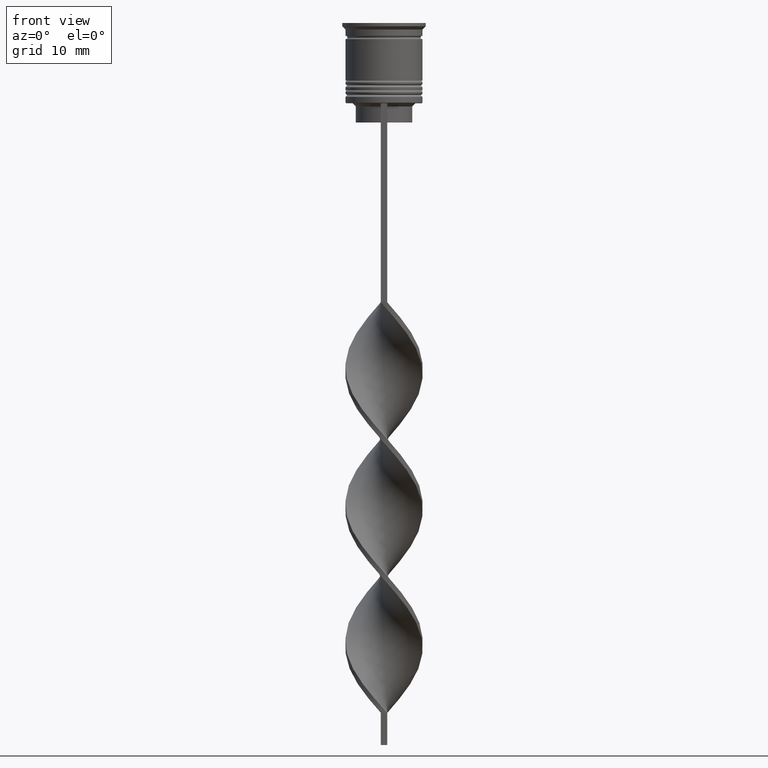
[diagram: clean part render]
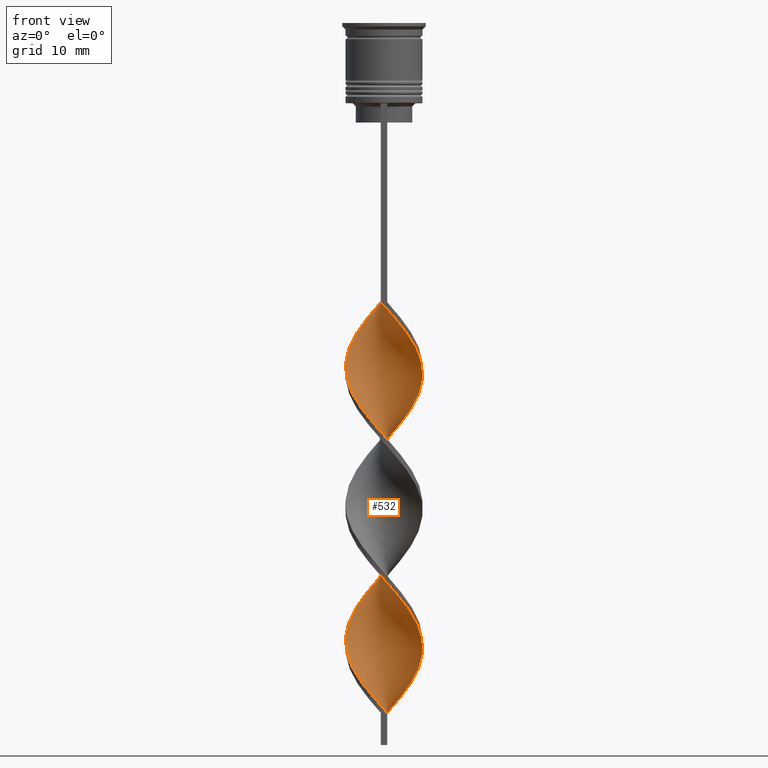
[diagram: same view with one face highlighted and labeled with its STEP entity id]
A machine part, front view. The second image highlights one B-rep face of the part: STEP entity #532.
In plain terms, the highlighted face is a freeform B-spline surface patch.
Its self-contained STEP definition (entity closure, byte-faithful):
#1 = CARTESIAN_POINT ( 'NONE',  ( 3.018907784180934861, -5.260288998093235691, -47.60256410256408799 ) ) ;
#9 = CARTESIAN_POINT ( 'NONE',  ( -4.653870821996361151, -3.819880413333762714, -58.26923076923076650 ) ) ;
#26 = CARTESIAN_POINT ( 'NONE',  ( -3.847936200635249993, 4.688051999358553878, -90.26923076923075939 ) ) ;
#33 = CARTESIAN_POINT ( 'NONE',  ( 4.858046446425394294, 3.630954320453863016, -59.08974358974358410 ) ) ;
#39 = CARTESIAN_POINT ( 'NONE',  ( -1.228531899333562993, 5.939289008388869640, -44.32051282051282470 ) ) ;
#50 = CARTESIAN_POINT ( 'NONE',  ( -0.9504230770123187622, 5.945308736700090968, -66.47435897435896379 ) ) ;
#55 = CARTESIAN_POINT ( 'NONE',  ( 5.585824691029640299, 2.362838774426348376, -57.44871794871794890 ) ) ;
#71 = CARTESIAN_POINT ( 'NONE',  ( 4.653870821996360263, -3.819880413333763158, -50.06410256410256210 ) ) ;
#77 = CARTESIAN_POINT ( 'NONE',  ( -1.228531899333566990, -5.939289008388869640, -85.34615384615383959 ) ) ;
#78 = CARTESIAN_POINT ( 'NONE',  ( -1.672314254691080082, -5.829906481789052464, -62.37179487179486870 ) ) ;
#89 = CARTESIAN_POINT ( 'NONE',  ( 1.921364894438374549, 5.705993072412533174, -105.8589743589743506 ) ) ;
#95 = CARTESIAN_POINT ( 'NONE',  ( 6.044068061194097119, -0.5036723384328415376, -54.16666666666665719 ) ) ;
#111 = CARTESIAN_POINT ( 'NONE',  ( 5.895984904460662257, -1.219574518580966105, -96.01282051282051100 ) ) ;
#126 = CARTESIAN_POINT ( 'NONE',  ( 3.604480575359220396, -4.822625818147004750, -91.08974358974359120 ) ) ;
#131 = CARTESIAN_POINT ( 'NONE',  ( -4.190053366537505042, 4.384962638200773810, -70.57692307692306599 ) ) ;
#145 = CARTESIAN_POINT ( 'NONE',  ( -5.432795012591220107, 2.595137443597922644, -73.03846153846153300 ) ) ;
#152 = CARTESIAN_POINT ( 'NONE',  ( -2.614197889543182107, 5.472697136436197596, -45.96153846153845279 ) ) ;
#154 = CARTESIAN_POINT ( 'NONE',  ( 0.9504230770123263117, 5.945308736700090968, -84.52564102564103621 ) ) ;
#165 = CARTESIAN_POINT ( 'NONE',  ( -6.044068061194097119, 0.5036723384328423148, -75.50000000000000000 ) ) ;
#187 = CARTESIAN_POINT ( 'NONE',  ( 2.345611019436010469, 5.545097739941142301, -82.88461538461537259 ) ) ;
#205 = CARTESIAN_POINT ( 'NONE',  ( 4.858046446425391629, -3.630954320453867012, -70.57692307692306599 ) ) ;
#218 = CARTESIAN_POINT ( 'NONE',  ( 0.5000000000000005551, 6.000000000000000000, -107.5000000000000000 ) ) ;
#231 = CARTESIAN_POINT ( 'NONE',  ( -3.018907784180935749, -5.260288998093234802, -60.73076923076922640 ) ) ;
#241 = VERTEX_POINT ( 'NONE', #2439 ) ;
#250 = CARTESIAN_POINT ( 'NONE',  ( -2.345611019436007361, -5.545097739941143189, -61.55128205128204399 ) ) ;
#269 = CARTESIAN_POINT ( 'NONE',  ( -5.787399899633756561, 1.660121200912507922, -51.70512820512820440 ) ) ;
#285 = CARTESIAN_POINT ( 'NONE',  ( 1.672314254691080748, 5.829906481789052464, -83.70512820512820440 ) ) ;
#301 = CARTESIAN_POINT ( 'NONE',  ( 5.117688277455216372, 3.254798188466750730, -78.78205128205127039 ) ) ;
#326 = CARTESIAN_POINT ( 'NONE',  ( 0.2285318993335633819, -6.060710991611130360, -44.32051282051282470 ) ) ;
#331 = CARTESIAN_POINT ( 'NONE',  ( -5.432795012591220107, 2.595137443597922644, -73.03846153846153300 ) ) ;
#332 = CARTESIAN_POINT ( 'NONE',  ( -6.016521584715985860, 0.2268656444829126040, -53.34615384615383959 ) ) ;
#345 = CARTESIAN_POINT ( 'NONE',  ( 1.672314254691077640, -5.829906481789053352, -45.96153846153845990 ) ) ;
#350 = CARTESIAN_POINT ( 'NONE',  ( 4.653870821996360263, -3.819880413333763158, -92.73076923076922640 ) ) ;
#359 = CARTESIAN_POINT ( 'NONE',  ( -3.018907784180935749, -5.260288998093234802, -103.3974358974358694 ) ) ;
#363 = CARTESIAN_POINT ( 'NONE',  ( 1.672314254691077640, -5.829906481789053352, -88.62820512820512420 ) ) ;
#366 = CARTESIAN_POINT ( 'NONE',  ( -3.604480575359219507, 4.822625818147005639, -69.75641025641024839 ) ) ;
#385 = CARTESIAN_POINT ( 'NONE',  ( 5.221935568727516852, 2.996896547440106140, -100.9358974358974308 ) ) ;
#397 = CARTESIAN_POINT ( 'NONE',  ( -4.858046446425396070, -3.630954320453860351, -80.42307692307691980 ) ) ;
#402 = CARTESIAN_POINT ( 'NONE',  ( -1.672314254691075641, 5.829906481789053352, -67.29487179487178139 ) ) ;
#403 = CARTESIAN_POINT ( 'NONE',  ( 5.988975108237873712, -0.9574036273986642476, -73.85897435897436480 ) ) ;
#415 = CARTESIAN_POINT ( 'NONE',  ( 0.5000000000000005551, 6.000000000000000000, -107.5000000000000000 ) ) ;
#419 = CARTESIAN_POINT ( 'NONE',  ( 3.847936200635250437, 4.688051999358552990, -103.3974358974358694 ) ) ;
#420 = CARTESIAN_POINT ( 'NONE',  ( -5.221935568727515964, 2.996896547440107916, -92.73076923076922640 ) ) ;
#455 = CARTESIAN_POINT ( 'NONE',  ( -5.117688277455213708, -3.254798188466752951, -100.1153846153846132 ) ) ;
#503 = CARTESIAN_POINT ( 'NONE',  ( 1.228531899333561661, -5.939289008388869640, -65.65384615384614619 ) ) ;
#519 = CARTESIAN_POINT ( 'NONE',  ( -5.117688277455213708, -3.254798188466752951, -100.1153846153846274 ) ) ;
#528 = CARTESIAN_POINT ( 'NONE',  ( -2.345611019436006028, 5.545097739941144077, -68.11538461538459899 ) ) ;
#532 = ADVANCED_FACE ( 'NONE', ( #1371 ), #2099, .T. ) ;
#539 = CARTESIAN_POINT ( 'NONE',  ( -5.787399899633756561, 1.660121200912507922, -94.37179487179486159 ) ) ;
#555 = VECTOR ( 'NONE', #2796, 1000.000000000000000 ) ;
#556 = CARTESIAN_POINT ( 'NONE',  ( -4.190053366537507706, -4.384962638200770257, -59.08974358974359120 ) ) ;
#574 = CARTESIAN_POINT ( 'NONE',  ( -2.614197889543182107, 5.472697136436197596, -88.62820512820513841 ) ) ;
#614 = CARTESIAN_POINT ( 'NONE',  ( 6.016521584715985860, 0.2268656444829105501, -54.98717948717948190 ) ) ;
#617 = CARTESIAN_POINT ( 'NONE',  ( 5.432795012591220107, -2.595137443597922200, -94.37179487179486159 ) ) ;
#618 = CARTESIAN_POINT ( 'NONE',  ( -5.432795012591221884, -2.595137443597919980, -56.62820512820513130 ) ) ;
#631 = CARTESIAN_POINT ( 'NONE',  ( 5.787399899633756561, 1.660121200912505479, -99.29487179487178139 ) ) ;
#636 = CARTESIAN_POINT ( 'NONE',  ( -4.858046446425396070, -3.630954320453860351, -80.42307692307691980 ) ) ;
#649 = CARTESIAN_POINT ( 'NONE',  ( -5.117688277455211932, 3.254798188466756503, -72.21794871794871540 ) ) ;
#653 = CARTESIAN_POINT ( 'NONE',  ( 0.5000000000000005551, 6.000000000000000000, -64.83333333333332860 ) ) ;
#666 = CARTESIAN_POINT ( 'NONE',  ( -6.016521584715984972, -0.2268656444829071639, -76.32051282051281760 ) ) ;
#674 = CARTESIAN_POINT ( 'NONE',  ( 2.345611019436006028, -5.545097739941144077, -89.44871794871794179 ) ) ;
#675 = CARTESIAN_POINT ( 'NONE',  ( -3.847936200635249993, 4.688051999358553878, -47.60256410256409509 ) ) ;
#686 = CARTESIAN_POINT ( 'NONE',  ( 4.352991323530322809, 4.159503159906207337, -102.5769230769230660 ) ) ;
#692 = CARTESIAN_POINT ( 'NONE',  ( 4.190053366537506818, -4.384962638200772922, -91.91025641025643722 ) ) ;
#693 = CARTESIAN_POINT ( 'NONE',  ( 4.653870821996362039, 3.819880413333761826, -79.60256410256410220 ) ) ;
#707 = CARTESIAN_POINT ( 'NONE',  ( -3.018907784180933973, 5.260288998093236579, -68.93589743589743080 ) ) ;
#711 = CARTESIAN_POINT ( 'NONE',  ( -0.4999999999999997780, 6.000000000000000000, -43.50000000000000000 ) ) ;
#712 = CARTESIAN_POINT ( 'NONE',  ( -1.228531899333562993, 5.939289008388869640, -86.98717948717948900 ) ) ;
#732 = CARTESIAN_POINT ( 'NONE',  ( -0.4999999999999997780, 6.000000000000000000, -86.16666666666667140 ) ) ;
#748 = CARTESIAN_POINT ( 'NONE',  ( 0.2285318993335668514, 6.060710991611130360, -85.34615384615385381 ) ) ;
#775 = CARTESIAN_POINT ( 'NONE',  ( -4.352991323530321033, 4.159503159906209113, -91.08974358974359120 ) ) ;
#782 = CARTESIAN_POINT ( 'NONE',  ( 6.044068061194097119, -0.5036723384328415376, -54.16666666666666430 ) ) ;
#793 = ORIENTED_EDGE ( 'NONE', *, *, #2493, .F. ) ;
#795 = CARTESIAN_POINT ( 'NONE',  ( 5.747901747727230060, 1.935476698729086786, -77.14102564102563520 ) ) ;
#810 = CARTESIAN_POINT ( 'NONE',  ( 3.604480575359223060, 4.822625818147002086, -81.24358974358973740 ) ) ;
#820 = CARTESIAN_POINT ( 'NONE',  ( 4.190053366537506818, -4.384962638200772922, -49.24358974358973740 ) ) ;
#827 = EDGE_LOOP ( 'NONE', ( #859, #2407, #3457, #793 ) ) ;
#828 = CARTESIAN_POINT ( 'NONE',  ( 2.345611019436010469, 5.545097739941142301, -82.88461538461537259 ) ) ;
#836 = CARTESIAN_POINT ( 'NONE',  ( 0.9504230770123207606, -5.945308736700090968, -45.14102564102563520 ) ) ;
#846 = CARTESIAN_POINT ( 'NONE',  ( 0.4999999999999990563, -6.000000000000000000, -64.83333333333332860 ) ) ;
#859 = ORIENTED_EDGE ( 'NONE', *, *, #1781, .T. ) ;
#861 = VERTEX_POINT ( 'NONE', #1269 ) ;
#883 = CARTESIAN_POINT ( 'NONE',  ( -4.653870821996361151, -3.819880413333762714, -100.9358974358974308 ) ) ;
#887 = CARTESIAN_POINT ( 'NONE',  ( 5.988975108237873712, 0.9574036273986640255, -55.80769230769230660 ) ) ;
#890 = CARTESIAN_POINT ( 'NONE',  ( -0.9504230770123187622, 5.945308736700090968, -66.47435897435896379 ) ) ;
#893 = CARTESIAN_POINT ( 'NONE',  ( -5.895984904460662257, -1.219574518580964106, -54.98717948717948190 ) ) ;
#909 = CARTESIAN_POINT ( 'NONE',  ( 5.895984904460662257, -1.219574518580966105, -96.01282051282051100 ) ) ;
#912 = CARTESIAN_POINT ( 'NONE',  ( 5.988975108237873712, 0.9574036273986641365, -55.80769230769230660 ) ) ;
#913 = CARTESIAN_POINT ( 'NONE',  ( -0.4999999999999997780, 6.000000000000000888, -43.50000000000000000 ) ) ;
#924 = CARTESIAN_POINT ( 'NONE',  ( -5.585824691029640299, -2.362838774426345712, -78.78205128205127039 ) ) ;
#928 = CARTESIAN_POINT ( 'NONE',  ( -0.4999999999999997780, -6.000000000000000000, -86.16666666666667140 ) ) ;
#936 = CARTESIAN_POINT ( 'NONE',  ( -0.2285318993335660742, -6.060710991611129472, -106.6794871794871682 ) ) ;
#946 = CARTESIAN_POINT ( 'NONE',  ( 5.787399899633756561, 1.660121200912505479, -99.29487179487178139 ) ) ;
#960 = CARTESIAN_POINT ( 'NONE',  ( 5.117688277455213708, -3.254798188466753839, -93.55128205128204399 ) ) ;
#967 = CARTESIAN_POINT ( 'NONE',  ( -3.018907784180934417, 5.260288998093236579, -68.93589743589743080 ) ) ;
#979 = CARTESIAN_POINT ( 'NONE',  ( -0.4999999999999997780, -6.000000000000000000, -86.16666666666667140 ) ) ;
#983 = CARTESIAN_POINT ( 'NONE',  ( -3.847936200635249993, 4.688051999358553878, -47.60256410256408799 ) ) ;
#984 = CARTESIAN_POINT ( 'NONE',  ( -4.858046446425393405, 3.630954320453865680, -91.91025641025643722 ) ) ;
#1002 = CARTESIAN_POINT ( 'NONE',  ( -5.432795012591221884, -2.595137443597919980, -99.29487179487178139 ) ) ;
#1021 = CARTESIAN_POINT ( 'NONE',  ( 5.117688277455216372, 3.254798188466750286, -78.78205128205127039 ) ) ;
#1037 = CARTESIAN_POINT ( 'NONE',  ( -3.604480575359222172, -4.822625818147002974, -102.5769230769230660 ) ) ;
#1055 = CARTESIAN_POINT ( 'NONE',  ( -0.4999999999999997780, -6.000000000000000000, -43.50000000000000000 ) ) ;
#1064 = LINE ( 'NONE', #1339, #555 ) ;
#1067 = CARTESIAN_POINT ( 'NONE',  ( -6.044068061194097119, -0.5036723384328408715, -96.83333333333332860 ) ) ;
#1075 = CARTESIAN_POINT ( 'NONE',  ( 5.221935568727516852, 2.996896547440106140, -58.26923076923076650 ) ) ;
#1087 = CARTESIAN_POINT ( 'NONE',  ( 5.988975108237873712, -0.9574036273986643586, -73.85897435897436480 ) ) ;
#1095 = CARTESIAN_POINT ( 'NONE',  ( 0.2285318993335633819, -6.060710991611129472, -44.32051282051282470 ) ) ;
#1103 = CARTESIAN_POINT ( 'NONE',  ( -5.747901747727229171, -1.935476698729088563, -55.80769230769230660 ) ) ;
#1119 = CARTESIAN_POINT ( 'NONE',  ( -0.2285318993335660742, -6.060710991611129472, -64.01282051282051100 ) ) ;
#1138 = CARTESIAN_POINT ( 'NONE',  ( 1.921364894438370330, -5.705993072412534062, -66.47435897435896379 ) ) ;
#1144 = CARTESIAN_POINT ( 'NONE',  ( 5.747901747727229171, -1.935476698729089451, -52.52564102564102910 ) ) ;
#1149 = CARTESIAN_POINT ( 'NONE',  ( -5.221935568727515964, 2.996896547440107916, -50.06410256410256210 ) ) ;
#1156 = CARTESIAN_POINT ( 'NONE',  ( -0.9504230770123229810, -5.945308736700090968, -105.8589743589743506 ) ) ;
#1166 = CARTESIAN_POINT ( 'NONE',  ( 3.231067045089216716, 5.080374567897374405, -61.55128205128204399 ) ) ;
#1181 = CARTESIAN_POINT ( 'NONE',  ( 4.190053366537506818, -4.384962638200773810, -49.24358974358974450 ) ) ;
#1184 = CARTESIAN_POINT ( 'NONE',  ( 6.044068061194097119, -0.5036723384328415376, -96.83333333333332860 ) ) ;
#1186 = CARTESIAN_POINT ( 'NONE',  ( -0.9504230770123229810, -5.945308736700090968, -63.19230769230768630 ) ) ;
#1200 = CARTESIAN_POINT ( 'NONE',  ( 4.858046446425394294, 3.630954320453863016, -101.7564102564102484 ) ) ;
#1204 = CARTESIAN_POINT ( 'NONE',  ( -3.847936200635250881, -4.688051999358552990, -82.06410256410255499 ) ) ;
#1206 = CARTESIAN_POINT ( 'NONE',  ( -6.044068061194097119, -0.5036723384328409825, -54.16666666666666430 ) ) ;
#1217 = CARTESIAN_POINT ( 'NONE',  ( 4.190053366537506818, -4.384962638200773810, -91.91025641025643722 ) ) ;
#1218 = CARTESIAN_POINT ( 'NONE',  ( 0.4999999999999990563, -6.000000000000000000, -107.5000000000000000 ) ) ;
#1222 = CARTESIAN_POINT ( 'NONE',  ( 0.2285318993335633819, -6.060710991611129472, -86.98717948717948900 ) ) ;
#1235 = CARTESIAN_POINT ( 'NONE',  ( 3.018907784180934417, -5.260288998093235691, -90.26923076923077360 ) ) ;
#1239 = VERTEX_POINT ( 'NONE', #1218 ) ;
#1240 = CARTESIAN_POINT ( 'NONE',  ( 5.117688277455213708, -3.254798188466753839, -50.88461538461538680 ) ) ;
#1255 = CARTESIAN_POINT ( 'NONE',  ( -4.653870821996360263, 3.819880413333763158, -71.39743589743588359 ) ) ;
#1262 = CARTESIAN_POINT ( 'NONE',  ( -1.921364894438372328, 5.705993072412534062, -45.14102564102563520 ) ) ;
#1263 = CARTESIAN_POINT ( 'NONE',  ( 5.221935568727515964, -2.996896547440107916, -71.39743589743588359 ) ) ;
#1269 = CARTESIAN_POINT ( 'NONE',  ( 0.5000000000000005551, 6.000000000000000000, -107.5000000000000000 ) ) ;
#1274 = CARTESIAN_POINT ( 'NONE',  ( 6.044068061194097119, -0.5036723384328415376, -96.83333333333332860 ) ) ;
#1291 = CARTESIAN_POINT ( 'NONE',  ( 0.4999999999999995559, -2.000000000000000000, -107.5000000000000000 ) ) ;
#1294 = CARTESIAN_POINT ( 'NONE',  ( 5.747901747727230060, 1.935476698729086786, -77.14102564102563520 ) ) ;
#1313 = CARTESIAN_POINT ( 'NONE',  ( 5.585824691029637634, -2.362838774426352373, -72.21794871794871540 ) ) ;
#1339 = CARTESIAN_POINT ( 'NONE',  ( -0.4999999999999997780, -6.000000000000000000, -43.50000000000000000 ) ) ;
#1342 = CARTESIAN_POINT ( 'NONE',  ( -4.858046446425393405, 3.630954320453865680, -91.91025641025643722 ) ) ;
#1349 = CARTESIAN_POINT ( 'NONE',  ( 5.585824691029639411, 2.362838774426348376, -57.44871794871794890 ) ) ;
#1360 = CARTESIAN_POINT ( 'NONE',  ( -4.858046446425393405, 3.630954320453865680, -49.24358974358973740 ) ) ;
#1371 = FACE_OUTER_BOUND ( 'NONE', #827, .T. ) ;
#1379 = B_SPLINE_CURVE_WITH_KNOTS ( 'NONE', 3,
 ( #218, #3217, #1291, #1852 ),
 .UNSPECIFIED., .F., .F.,
 ( 4, 4 ),
 ( 0.000000000000000000, 1.000000000000000000 ),
 .UNSPECIFIED. ) ;
#1380 = CARTESIAN_POINT ( 'NONE',  ( 4.858046446425391629, -3.630954320453867012, -70.57692307692306599 ) ) ;
#1395 = CARTESIAN_POINT ( 'NONE',  ( -1.228531899333563215, 5.939289008388869640, -86.98717948717948900 ) ) ;
#1413 = CARTESIAN_POINT ( 'NONE',  ( 0.9504230770123263117, 5.945308736700090968, -84.52564102564103621 ) ) ;
#1423 = CARTESIAN_POINT ( 'NONE',  ( -4.352991323530321033, 4.159503159906209113, -48.42307692307691269 ) ) ;
#1438 = CARTESIAN_POINT ( 'NONE',  ( 0.5000000000000005551, 6.000000000000000000, -64.83333333333332860 ) ) ;
#1443 = CARTESIAN_POINT ( 'NONE',  ( -5.988975108237873712, -0.9574036273986618051, -77.14102564102563520 ) ) ;
#1460 = CARTESIAN_POINT ( 'NONE',  ( 5.747901747727229171, -1.935476698729089451, -95.19230769230769340 ) ) ;
#1471 = CARTESIAN_POINT ( 'NONE',  ( 2.345611019436006028, -5.545097739941144077, -89.44871794871794179 ) ) ;
#1475 = CARTESIAN_POINT ( 'NONE',  ( 2.614197889543183884, 5.472697136436196708, -62.37179487179486870 ) ) ;
#1491 = CARTESIAN_POINT ( 'NONE',  ( 3.231067045089216716, 5.080374567897374405, -104.2179487179487012 ) ) ;
#1494 = CARTESIAN_POINT ( 'NONE',  ( 6.016521584715985860, 0.2268656444829105501, -97.65384615384614619 ) ) ;
#1495 = CARTESIAN_POINT ( 'NONE',  ( -2.614197889543182107, 5.472697136436197596, -45.96153846153845990 ) ) ;
#1506 = CARTESIAN_POINT ( 'NONE',  ( -1.228531899333566768, -5.939289008388869640, -85.34615384615385381 ) ) ;
#1512 = CARTESIAN_POINT ( 'NONE',  ( -1.921364894438377657, -5.705993072412531397, -84.52564102564103621 ) ) ;
#1513 = CARTESIAN_POINT ( 'NONE',  ( -3.847936200635249993, 4.688051999358553878, -90.26923076923077360 ) ) ;
#1530 = CARTESIAN_POINT ( 'NONE',  ( 1.921364894438374549, 5.705993072412533174, -105.8589743589743506 ) ) ;
#1531 = CARTESIAN_POINT ( 'NONE',  ( 3.604480575359223060, 4.822625818147002086, -81.24358974358973740 ) ) ;
#1554 = CARTESIAN_POINT ( 'NONE',  ( 3.847936200635249548, -4.688051999358554767, -68.93589743589743080 ) ) ;
#1569 = CARTESIAN_POINT ( 'NONE',  ( -1.672314254691080082, -5.829906481789052464, -105.0384615384615188 ) ) ;
#1618 = CARTESIAN_POINT ( 'NONE',  ( 3.018907784180936194, 5.260288998093234802, -82.06410256410255499 ) ) ;
#1623 = CARTESIAN_POINT ( 'NONE',  ( 3.604480575359220396, -4.822625818147004750, -48.42307692307691269 ) ) ;
#1635 = CARTESIAN_POINT ( 'NONE',  ( -0.9504230770123229810, -5.945308736700090968, -63.19230769230768630 ) ) ;
#1638 =( BOUNDED_CURVE ( )  B_SPLINE_CURVE ( 2, ( #1055, #326, #2164, #345, #3280, #1998, #1623, #1181, #71, #2268, #3571, #1144, #2523, #782, #614, #887, #3009, #1349, #1075, #33, #3299, #2249, #1708, #1910, #2545, #3367, #1438, #3025, #50, #3387, #528, #707, #2860, #1759, #1255, #649, #145, #3479, #3131, #165, #666, #2896, #2337, #924, #1779, #397, #3458, #3406, #2017, #1795, #2658, #1506, #979, #2620, #2089, #363, #1471, #1235, #126, #1217, #3159, #960, #3197, #3146, #909, #1274, #2031, #2071, #631, #2582, #3179, #1200, #686, #1816, #1491, #1742, #89, #2911, #415 ),
 .UNSPECIFIED., .F., .T. ) 
 B_SPLINE_CURVE_WITH_KNOTS ( ( 3, 2, 2, 2, 2, 2, 2, 2, 2, 2, 2, 2, 2, 2, 2, 2, 2, 2, 2, 2, 2, 2, 2, 2, 2, 2, 2, 2, 2, 2, 2, 2, 2, 2, 2, 2, 2, 2, 2, 3 ),
 ( 0.000000000000000000, 0.01923076923076923184, 0.03846153846153846367, 0.05769230769230768857, 0.07692307692307692735, 0.09615384615384615918, 0.1153846153846153771, 0.1346153846153846090, 0.1538461538461538547, 0.1730769230769230449, 0.1923076923076923184, 0.2115384615384615363, 0.2307692307692307543, 0.2500000000000000000, 0.2692307692307692180, 0.2884615384615384359, 0.3076923076923077094, 0.3269230769230769273, 0.3461538461538460898, 0.3653846153846153633, 0.3846153846153846367, 0.4038461538461539102, 0.4230769230769230727, 0.4423076923076922906, 0.4615384615384615086, 0.4807692307692307820, 0.5000000000000000000, 0.5192307692307692735, 0.5384615384615384359, 0.5576923076923077094, 0.5769230769230768718, 0.5961538461538461453, 0.6153846153846154188, 0.6346153846153845812, 0.6538461538461538547, 0.6730769230769230171, 0.6923076923076921796, 0.7115384615384615641, 0.7307692307692307265, 0.7500000000000000000 ),
 .UNSPECIFIED. ) 
 CURVE ( )  GEOMETRIC_REPRESENTATION_ITEM ( )  RATIONAL_B_SPLINE_CURVE ( ( 1.000000000000000000, 0.9927088740980539727, 1.000000000000000000, 0.9927088740980539727, 1.000000000000000000, 0.9927088740980539727, 1.000000000000000000, 0.9927088740980539727, 1.000000000000000000, 0.9927088740980539727, 1.000000000000000000, 0.9927088740980539727, 1.000000000000000000, 0.9927088740980539727, 1.000000000000000000, 0.9927088740980539727, 1.000000000000000000, 0.9927088740980539727, 1.000000000000000000, 0.9927088740980539727, 1.000000000000000000, 0.9927088740980539727, 1.000000000000000000, 0.9927088740980539727, 1.000000000000000000, 0.9927088740980539727, 1.000000000000000000, 0.9927088740980539727, 1.000000000000000000, 0.9927088740980539727, 1.000000000000000000, 0.9927088740980539727, 1.000000000000000000, 0.9927088740980539727, 1.000000000000000000, 0.9927088740980539727, 1.000000000000000000, 0.9927088740980539727, 1.000000000000000000, 0.9927088740980539727, 1.000000000000000000, 0.9927088740980539727, 1.000000000000000000, 0.9927088740980539727, 1.000000000000000000, 0.9927088740980539727, 1.000000000000000000, 0.9927088740980539727, 1.000000000000000000, 0.9927088740980539727, 1.000000000000000000, 0.9927088740980539727, 1.000000000000000000, 0.9927088740980539727, 1.000000000000000000, 0.9927088740980539727, 1.000000000000000000, 0.9927088740980539727, 1.000000000000000000, 0.9927088740980539727, 1.000000000000000000, 0.9927088740980539727, 1.000000000000000000, 0.9927088740980539727, 1.000000000000000000, 0.9927088740980539727, 1.000000000000000000, 0.9927088740980539727, 1.000000000000000000, 0.9927088740980539727, 1.000000000000000000, 0.9927088740980539727, 1.000000000000000000, 0.9927088740980539727, 1.000000000000000000, 0.9927088740980539727, 1.000000000000000000, 0.9927088740980539727, 1.000000000000000000 ) ) 
 REPRESENTATION_ITEM ( '' )  );
#1652 = CARTESIAN_POINT ( 'NONE',  ( 2.614197889543179887, -5.472697136436198484, -67.29487179487178139 ) ) ;
#1672 = CARTESIAN_POINT ( 'NONE',  ( 3.231067045089215384, -5.080374567897375293, -68.11538461538459899 ) ) ;
#1687 = CARTESIAN_POINT ( 'NONE',  ( -3.604480575359222172, -4.822625818147002974, -59.91025641025640880 ) ) ;
#1708 = CARTESIAN_POINT ( 'NONE',  ( 3.231067045089216716, 5.080374567897374405, -61.55128205128204399 ) ) ;
#1729 = CARTESIAN_POINT ( 'NONE',  ( -2.614197889543184328, -5.472697136436196708, -83.70512820512820440 ) ) ;
#1730 = CARTESIAN_POINT ( 'NONE',  ( -5.117688277455213708, -3.254798188466752951, -57.44871794871794890 ) ) ;
#1737 = CARTESIAN_POINT ( 'NONE',  ( -4.190053366537507706, -4.384962638200770257, -101.7564102564102484 ) ) ;
#1742 = CARTESIAN_POINT ( 'NONE',  ( 2.614197889543183884, 5.472697136436196708, -105.0384615384615188 ) ) ;
#1749 = CARTESIAN_POINT ( 'NONE',  ( 5.221935568727516852, 2.996896547440106140, -58.26923076923076650 ) ) ;
#1759 = CARTESIAN_POINT ( 'NONE',  ( -4.190053366537505042, 4.384962638200774698, -70.57692307692306599 ) ) ;
#1763 = CARTESIAN_POINT ( 'NONE',  ( 5.988975108237873712, 0.9574036273986641365, -98.47435897435896379 ) ) ;
#1765 = CARTESIAN_POINT ( 'NONE',  ( 0.4999999999999990563, -6.000000000000000000, -64.83333333333332860 ) ) ;
#1779 = CARTESIAN_POINT ( 'NONE',  ( -5.221935568727517740, -2.996896547440105252, -79.60256410256410220 ) ) ;
#1781 = EDGE_CURVE ( 'NONE', #241, #3122, #1064, .T. ) ;
#1783 = CARTESIAN_POINT ( 'NONE',  ( 5.747901747727229171, -1.935476698729089451, -52.52564102564103621 ) ) ;
#1784 = CARTESIAN_POINT ( 'NONE',  ( -6.016521584715985860, 0.2268656444829126040, -96.01282051282051100 ) ) ;
#1795 = CARTESIAN_POINT ( 'NONE',  ( -2.614197889543184328, -5.472697136436196708, -83.70512820512820440 ) ) ;
#1800 = CARTESIAN_POINT ( 'NONE',  ( 1.228531899333566102, 5.939289008388869640, -64.01282051282051100 ) ) ;
#1801 = CARTESIAN_POINT ( 'NONE',  ( -4.352991323530321033, 4.159503159906209113, -91.08974358974359120 ) ) ;
#1816 = CARTESIAN_POINT ( 'NONE',  ( 3.847936200635250881, 4.688051999358552990, -103.3974358974358836 ) ) ;
#1820 = CARTESIAN_POINT ( 'NONE',  ( -5.585824691029639411, 2.362838774426349264, -93.55128205128204399 ) ) ;
#1839 = CARTESIAN_POINT ( 'NONE',  ( 6.016521584715985860, -0.2268656444829146579, -74.67948717948718240 ) ) ;
#1852 = CARTESIAN_POINT ( 'NONE',  ( 0.4999999999999990563, -6.000000000000000000, -107.5000000000000000 ) ) ;
#1857 = CARTESIAN_POINT ( 'NONE',  ( -1.921364894438372328, 5.705993072412534062, -87.80769230769230660 ) ) ;
#1883 = CARTESIAN_POINT ( 'NONE',  ( -5.585824691029640299, 2.362838774426349264, -93.55128205128204399 ) ) ;
#1902 = CARTESIAN_POINT ( 'NONE',  ( -0.4999999999999997780, 6.000000000000000888, -43.50000000000000000 ) ) ;
#1905 = CARTESIAN_POINT ( 'NONE',  ( 4.352991323530320145, -4.159503159906210001, -69.75641025641024839 ) ) ;
#1910 = CARTESIAN_POINT ( 'NONE',  ( 2.614197889543183884, 5.472697136436196708, -62.37179487179486870 ) ) ;
#1923 = CARTESIAN_POINT ( 'NONE',  ( -1.921364894438372328, 5.705993072412534062, -87.80769230769230660 ) ) ;
#1938 = CARTESIAN_POINT ( 'NONE',  ( -0.4999999999999997780, 6.000000000000000000, -86.16666666666667140 ) ) ;
#1959 = CARTESIAN_POINT ( 'NONE',  ( 0.2285318993335668514, 6.060710991611129472, -85.34615384615383959 ) ) ;
#1994 = CARTESIAN_POINT ( 'NONE',  ( 0.4999999999999990563, -6.000000000000000000, -107.5000000000000000 ) ) ;
#1998 = CARTESIAN_POINT ( 'NONE',  ( 3.018907784180934417, -5.260288998093235691, -47.60256410256409509 ) ) ;
#2004 = CARTESIAN_POINT ( 'NONE',  ( 5.117688277455213708, -3.254798188466753839, -93.55128205128204399 ) ) ;
#2017 = CARTESIAN_POINT ( 'NONE',  ( -3.231067045089219825, -5.080374567897373517, -82.88461538461537259 ) ) ;
#2020 = CARTESIAN_POINT ( 'NONE',  ( -5.895984904460662257, 1.219574518580968325, -74.67948717948718240 ) ) ;
#2021 = CARTESIAN_POINT ( 'NONE',  ( -4.190053366537507706, -4.384962638200771146, -59.08974358974358410 ) ) ;
#2031 = CARTESIAN_POINT ( 'NONE',  ( 6.016521584715985860, 0.2268656444829105501, -97.65384615384614619 ) ) ;
#2038 = CARTESIAN_POINT ( 'NONE',  ( 3.018907784180934861, -5.260288998093235691, -90.26923076923075939 ) ) ;
#2039 = CARTESIAN_POINT ( 'NONE',  ( -3.604480575359222172, -4.822625818147002974, -59.91025641025640880 ) ) ;
#2046 = CARTESIAN_POINT ( 'NONE',  ( -2.345611019436007361, -5.545097739941143189, -104.2179487179487012 ) ) ;
#2055 = CARTESIAN_POINT ( 'NONE',  ( 6.016521584715985860, 0.2268656444829105501, -54.98717948717948190 ) ) ;
#2071 = CARTESIAN_POINT ( 'NONE',  ( 5.988975108237873712, 0.9574036273986640255, -98.47435897435896379 ) ) ;
#2076 = CARTESIAN_POINT ( 'NONE',  ( -6.044068061194097119, 0.5036723384328423148, -75.49999999999998579 ) ) ;
#2077 = CARTESIAN_POINT ( 'NONE',  ( -5.787399899633756561, 1.660121200912507922, -94.37179487179486159 ) ) ;
#2089 = CARTESIAN_POINT ( 'NONE',  ( 0.9504230770123207606, -5.945308736700090968, -87.80769230769230660 ) ) ;
#2094 = CARTESIAN_POINT ( 'NONE',  ( -1.228531899333563215, 5.939289008388869640, -44.32051282051282470 ) ) ;
#2095 = CARTESIAN_POINT ( 'NONE',  ( -3.018907784180935305, -5.260288998093234802, -103.3974358974358836 ) ) ;
#2099 =( BOUNDED_SURFACE ( )  B_SPLINE_SURFACE ( 1, 2, ( 
 ( #2476, #1095, #836, #2776, #2201, #1, #3317, #820, #3044, #1240, #2568, #1783, #2548, #95, #2055, #912, #2272, #55, #1749, #2307, #3184, #3134, #1166, #1475, #3391, #1800, #653, #2864, #890, #402, #3427, #967, #366, #131, #2341, #3465, #331, #2589, #2020, #2076, #2289, #1443, #2846, #3118, #2900, #636, #3445, #1204, #3165, #1729, #1512, #77, #928, #1222, #2325, #3413, #674, #2038, #3149, #692, #350, #2004, #617, #1460, #111, #1184, #1494, #1763, #946, #2883, #385, #2607, #2628, #419, #3204, #2917, #1530, #2364, #2644 ),
 ( #711, #2094, #1262, #152, #3483, #983, #2765, #1360, #2466, #3002, #269, #3054, #2802, #2503, #3326, #1103, #2749, #2211, #9, #556, #1687, #231, #250, #2225, #1635, #1119, #846, #503, #1138, #1652, #1672, #3344, #1905, #1380, #3583, #2483, #3071, #1087, #2245, #2784, #2729, #795, #2194, #301, #3603, #3309, #810, #1618, #828, #285, #1413, #1959, #1938, #1395, #1923, #574, #2518, #26, #775, #1342, #3036, #1883, #539, #2447, #3564, #1067, #2175, #3292, #3019, #519, #883, #1737, #2557, #359, #2046, #2838, #1156, #936, #1994 ) ),
 .UNSPECIFIED., .F., .F., .F. ) 
 B_SPLINE_SURFACE_WITH_KNOTS ( ( 2, 2 ),
 ( 3, 2, 2, 2, 2, 2, 2, 2, 2, 2, 2, 2, 2, 2, 2, 2, 2, 2, 2, 2, 2, 2, 2, 2, 2, 2, 2, 2, 2, 2, 2, 2, 2, 2, 2, 2, 2, 2, 2, 3 ),
 ( 0.000000000000000000, 1.000000000000000000 ),
 ( 0.000000000000000000, 0.01923076923076923184, 0.03846153846153846367, 0.05769230769230769551, 0.07692307692307692735, 0.09615384615384615918, 0.1153846153846153910, 0.1346153846153846090, 0.1538461538461538547, 0.1730769230769230727, 0.1923076923076923184, 0.2115384615384615363, 0.2307692307692307820, 0.2500000000000000000, 0.2692307692307692180, 0.2884615384615384359, 0.3076923076923077094, 0.3269230769230769273, 0.3461538461538461453, 0.3653846153846153633, 0.3846153846153846367, 0.4038461538461538547, 0.4230769230769230727, 0.4423076923076922906, 0.4615384615384615641, 0.4807692307692307820, 0.5000000000000000000, 0.5192307692307692735, 0.5384615384615384359, 0.5576923076923077094, 0.5769230769230768718, 0.5961538461538461453, 0.6153846153846154188, 0.6346153846153845812, 0.6538461538461538547, 0.6730769230769231282, 0.6923076923076922906, 0.7115384615384615641, 0.7307692307692307265, 0.7500000000000000000 ),
 .UNSPECIFIED. ) 
 GEOMETRIC_REPRESENTATION_ITEM ( )  RATIONAL_B_SPLINE_SURFACE ( (
 ( 1.000000000000000000, 0.9927088740980539727, 1.000000000000000000, 0.9927088740980539727, 1.000000000000000000, 0.9927088740980539727, 1.000000000000000000, 0.9927088740980539727, 1.000000000000000000, 0.9927088740980539727, 1.000000000000000000, 0.9927088740980539727, 1.000000000000000000, 0.9927088740980539727, 1.000000000000000000, 0.9927088740980539727, 1.000000000000000000, 0.9927088740980539727, 1.000000000000000000, 0.9927088740980539727, 1.000000000000000000, 0.9927088740980539727, 1.000000000000000000, 0.9927088740980539727, 1.000000000000000000, 0.9927088740980539727, 1.000000000000000000, 0.9927088740980539727, 1.000000000000000000, 0.9927088740980539727, 1.000000000000000000, 0.9927088740980539727, 1.000000000000000000, 0.9927088740980539727, 1.000000000000000000, 0.9927088740980539727, 1.000000000000000000, 0.9927088740980539727, 1.000000000000000000, 0.9927088740980539727, 1.000000000000000000, 0.9927088740980539727, 1.000000000000000000, 0.9927088740980539727, 1.000000000000000000, 0.9927088740980539727, 1.000000000000000000, 0.9927088740980539727, 1.000000000000000000, 0.9927088740980539727, 1.000000000000000000, 0.9927088740980539727, 1.000000000000000000, 0.9927088740980539727, 1.000000000000000000, 0.9927088740980539727, 1.000000000000000000, 0.9927088740980539727, 1.000000000000000000, 0.9927088740980539727, 1.000000000000000000, 0.9927088740980539727, 1.000000000000000000, 0.9927088740980539727, 1.000000000000000000, 0.9927088740980539727, 1.000000000000000000, 0.9927088740980539727, 1.000000000000000000, 0.9927088740980539727, 1.000000000000000000, 0.9927088740980539727, 1.000000000000000000, 0.9927088740980539727, 1.000000000000000000, 0.9927088740980539727, 1.000000000000000000, 0.9927088740980539727, 1.000000000000000000),
 ( 1.000000000000000000, 0.9927088740980539727, 1.000000000000000000, 0.9927088740980539727, 1.000000000000000000, 0.9927088740980539727, 1.000000000000000000, 0.9927088740980539727, 1.000000000000000000, 0.9927088740980539727, 1.000000000000000000, 0.9927088740980539727, 1.000000000000000000, 0.9927088740980539727, 1.000000000000000000, 0.9927088740980539727, 1.000000000000000000, 0.9927088740980539727, 1.000000000000000000, 0.9927088740980539727, 1.000000000000000000, 0.9927088740980539727, 1.000000000000000000, 0.9927088740980539727, 1.000000000000000000, 0.9927088740980539727, 1.000000000000000000, 0.9927088740980539727, 1.000000000000000000, 0.9927088740980539727, 1.000000000000000000, 0.9927088740980539727, 1.000000000000000000, 0.9927088740980539727, 1.000000000000000000, 0.9927088740980539727, 1.000000000000000000, 0.9927088740980539727, 1.000000000000000000, 0.9927088740980539727, 1.000000000000000000, 0.9927088740980539727, 1.000000000000000000, 0.9927088740980539727, 1.000000000000000000, 0.9927088740980539727, 1.000000000000000000, 0.9927088740980539727, 1.000000000000000000, 0.9927088740980539727, 1.000000000000000000, 0.9927088740980539727, 1.000000000000000000, 0.9927088740980539727, 1.000000000000000000, 0.9927088740980539727, 1.000000000000000000, 0.9927088740980539727, 1.000000000000000000, 0.9927088740980539727, 1.000000000000000000, 0.9927088740980539727, 1.000000000000000000, 0.9927088740980539727, 1.000000000000000000, 0.9927088740980539727, 1.000000000000000000, 0.9927088740980539727, 1.000000000000000000, 0.9927088740980539727, 1.000000000000000000, 0.9927088740980539727, 1.000000000000000000, 0.9927088740980539727, 1.000000000000000000, 0.9927088740980539727, 1.000000000000000000, 0.9927088740980539727, 1.000000000000000000) ) ) 
 REPRESENTATION_ITEM ( '' )  SURFACE ( )  );
#2112 = CARTESIAN_POINT ( 'NONE',  ( 3.231067045089215384, -5.080374567897375293, -68.11538461538459899 ) ) ;
#2129 = CARTESIAN_POINT ( 'NONE',  ( 4.352991323530320145, -4.159503159906210001, -69.75641025641024839 ) ) ;
#2140 =( BOUNDED_CURVE ( )  B_SPLINE_CURVE ( 2, ( #913, #39, #2291, #1495, #2549, #675, #1423, #3135, #1149, #2253, #2832, #2865, #332, #1206, #893, #3119, #618, #1730, #2590, #2021, #2039, #2847, #2569, #78, #1186, #2308, #1765, #2697, #3185, #3503, #2112, #1554, #2129, #205, #1263, #1313, #3223, #403, #1839, #2417, #2679, #1294, #3484, #1021, #693, #3243, #1531, #2382, #187, #2397, #154, #748, #732, #712, #1857, #2365, #2954, #1513, #1801, #984, #420, #1820, #2077, #3264, #1784, #2935, #3539, #2918, #1002, #455, #2663, #2971, #1037, #2095, #2144, #1569, #2629, #3519, #2901 ),
 .UNSPECIFIED., .F., .T. ) 
 B_SPLINE_CURVE_WITH_KNOTS ( ( 3, 2, 2, 2, 2, 2, 2, 2, 2, 2, 2, 2, 2, 2, 2, 2, 2, 2, 2, 2, 2, 2, 2, 2, 2, 2, 2, 2, 2, 2, 2, 2, 2, 2, 2, 2, 2, 2, 2, 3 ),
 ( 0.000000000000000000, 0.01923076923076923184, 0.03846153846153846367, 0.05769230769230768857, 0.07692307692307692735, 0.09615384615384615918, 0.1153846153846153771, 0.1346153846153846090, 0.1538461538461538547, 0.1730769230769230449, 0.1923076923076923184, 0.2115384615384615363, 0.2307692307692307543, 0.2500000000000000000, 0.2692307692307692180, 0.2884615384615384359, 0.3076923076923077094, 0.3269230769230769273, 0.3461538461538460898, 0.3653846153846153633, 0.3846153846153846367, 0.4038461538461539102, 0.4230769230769230727, 0.4423076923076922906, 0.4615384615384615086, 0.4807692307692307820, 0.5000000000000000000, 0.5192307692307692735, 0.5384615384615384359, 0.5576923076923077094, 0.5769230769230768718, 0.5961538461538461453, 0.6153846153846154188, 0.6346153846153845812, 0.6538461538461538547, 0.6730769230769230171, 0.6923076923076921796, 0.7115384615384615641, 0.7307692307692307265, 0.7500000000000000000 ),
 .UNSPECIFIED. ) 
 CURVE ( )  GEOMETRIC_REPRESENTATION_ITEM ( )  RATIONAL_B_SPLINE_CURVE ( ( 1.000000000000000000, 0.9927088740980539727, 1.000000000000000000, 0.9927088740980539727, 1.000000000000000000, 0.9927088740980539727, 1.000000000000000000, 0.9927088740980539727, 1.000000000000000000, 0.9927088740980539727, 1.000000000000000000, 0.9927088740980539727, 1.000000000000000000, 0.9927088740980539727, 1.000000000000000000, 0.9927088740980539727, 1.000000000000000000, 0.9927088740980539727, 1.000000000000000000, 0.9927088740980539727, 1.000000000000000000, 0.9927088740980539727, 1.000000000000000000, 0.9927088740980539727, 1.000000000000000000, 0.9927088740980539727, 1.000000000000000000, 0.9927088740980539727, 1.000000000000000000, 0.9927088740980539727, 1.000000000000000000, 0.9927088740980539727, 1.000000000000000000, 0.9927088740980539727, 1.000000000000000000, 0.9927088740980539727, 1.000000000000000000, 0.9927088740980539727, 1.000000000000000000, 0.9927088740980539727, 1.000000000000000000, 0.9927088740980539727, 1.000000000000000000, 0.9927088740980539727, 1.000000000000000000, 0.9927088740980539727, 1.000000000000000000, 0.9927088740980539727, 1.000000000000000000, 0.9927088740980539727, 1.000000000000000000, 0.9927088740980539727, 1.000000000000000000, 0.9927088740980539727, 1.000000000000000000, 0.9927088740980539727, 1.000000000000000000, 0.9927088740980539727, 1.000000000000000000, 0.9927088740980539727, 1.000000000000000000, 0.9927088740980539727, 1.000000000000000000, 0.9927088740980539727, 1.000000000000000000, 0.9927088740980539727, 1.000000000000000000, 0.9927088740980539727, 1.000000000000000000, 0.9927088740980539727, 1.000000000000000000, 0.9927088740980539727, 1.000000000000000000, 0.9927088740980539727, 1.000000000000000000, 0.9927088740980539727, 1.000000000000000000, 0.9927088740980539727, 1.000000000000000000 ) ) 
 REPRESENTATION_ITEM ( '' )  );
#2144 = CARTESIAN_POINT ( 'NONE',  ( -2.345611019436007361, -5.545097739941143189, -104.2179487179487012 ) ) ;
#2164 = CARTESIAN_POINT ( 'NONE',  ( 0.9504230770123207606, -5.945308736700090968, -45.14102564102563520 ) ) ;
#2175 = CARTESIAN_POINT ( 'NONE',  ( -5.895984904460662257, -1.219574518580964106, -97.65384615384614619 ) ) ;
#2194 = CARTESIAN_POINT ( 'NONE',  ( 5.432795012591221884, 2.595137443597920868, -77.96153846153845279 ) ) ;
#2201 = CARTESIAN_POINT ( 'NONE',  ( 2.345611019436006028, -5.545097739941144077, -46.78205128205127750 ) ) ;
#2211 = CARTESIAN_POINT ( 'NONE',  ( -5.117688277455213708, -3.254798188466752951, -57.44871794871794890 ) ) ;
#2225 = CARTESIAN_POINT ( 'NONE',  ( -1.672314254691080304, -5.829906481789052464, -62.37179487179486870 ) ) ;
#2245 = CARTESIAN_POINT ( 'NONE',  ( 6.016521584715985860, -0.2268656444829146579, -74.67948717948718240 ) ) ;
#2249 = CARTESIAN_POINT ( 'NONE',  ( 3.847936200635250881, 4.688051999358552990, -60.73076923076922640 ) ) ;
#2253 = CARTESIAN_POINT ( 'NONE',  ( -5.585824691029639411, 2.362838774426349264, -50.88461538461537970 ) ) ;
#2268 = CARTESIAN_POINT ( 'NONE',  ( 5.117688277455213708, -3.254798188466753839, -50.88461538461537970 ) ) ;
#2272 = CARTESIAN_POINT ( 'NONE',  ( 5.787399899633756561, 1.660121200912505479, -56.62820512820513130 ) ) ;
#2289 = CARTESIAN_POINT ( 'NONE',  ( -6.016521584715984972, -0.2268656444829071639, -76.32051282051281760 ) ) ;
#2291 = CARTESIAN_POINT ( 'NONE',  ( -1.921364894438372328, 5.705993072412534062, -45.14102564102563520 ) ) ;
#2307 = CARTESIAN_POINT ( 'NONE',  ( 4.858046446425394294, 3.630954320453863016, -59.08974358974359120 ) ) ;
#2308 = CARTESIAN_POINT ( 'NONE',  ( -0.2285318993335660742, -6.060710991611130360, -64.01282051282051100 ) ) ;
#2325 = CARTESIAN_POINT ( 'NONE',  ( 0.9504230770123207606, -5.945308736700090968, -87.80769230769230660 ) ) ;
#2337 = CARTESIAN_POINT ( 'NONE',  ( -5.787399899633756561, -1.660121200912506367, -77.96153846153845279 ) ) ;
#2341 = CARTESIAN_POINT ( 'NONE',  ( -4.653870821996360263, 3.819880413333763158, -71.39743589743588359 ) ) ;
#2364 = CARTESIAN_POINT ( 'NONE',  ( 1.228531899333566102, 5.939289008388869640, -106.6794871794871682 ) ) ;
#2365 = CARTESIAN_POINT ( 'NONE',  ( -2.614197889543182107, 5.472697136436197596, -88.62820512820512420 ) ) ;
#2367 = EDGE_CURVE ( 'NONE', #3122, #1239, #2140, .T. ) ;
#2382 = CARTESIAN_POINT ( 'NONE',  ( 3.018907784180935749, 5.260288998093234802, -82.06410256410255499 ) ) ;
#2397 = CARTESIAN_POINT ( 'NONE',  ( 1.672314254691080526, 5.829906481789052464, -83.70512820512820440 ) ) ;
#2407 = ORIENTED_EDGE ( 'NONE', *, *, #2367, .T. ) ;
#2417 = CARTESIAN_POINT ( 'NONE',  ( 6.044068061194097119, 0.5036723384328402053, -75.50000000000000000 ) ) ;
#2439 = CARTESIAN_POINT ( 'NONE',  ( -0.4999999999999997780, -6.000000000000000000, -43.50000000000000000 ) ) ;
#2447 = CARTESIAN_POINT ( 'NONE',  ( -5.988975108237873712, 0.9574036273986648027, -95.19230769230769340 ) ) ;
#2466 = CARTESIAN_POINT ( 'NONE',  ( -5.221935568727515964, 2.996896547440107916, -50.06410256410256210 ) ) ;
#2476 = CARTESIAN_POINT ( 'NONE',  ( -0.4999999999999997780, -6.000000000000000000, -43.50000000000000000 ) ) ;
#2483 = CARTESIAN_POINT ( 'NONE',  ( 5.585824691029638522, -2.362838774426352373, -72.21794871794871540 ) ) ;
#2493 = EDGE_CURVE ( 'NONE', #241, #861, #1638, .T. ) ;
#2503 = CARTESIAN_POINT ( 'NONE',  ( -6.044068061194097119, -0.5036723384328408715, -54.16666666666665719 ) ) ;
#2518 = CARTESIAN_POINT ( 'NONE',  ( -3.231067045089215384, 5.080374567897375293, -89.44871794871794179 ) ) ;
#2523 = CARTESIAN_POINT ( 'NONE',  ( 5.895984904460662257, -1.219574518580966105, -53.34615384615383959 ) ) ;
#2545 = CARTESIAN_POINT ( 'NONE',  ( 1.921364894438374549, 5.705993072412533174, -63.19230769230768630 ) ) ;
#2548 = CARTESIAN_POINT ( 'NONE',  ( 5.895984904460662257, -1.219574518580966105, -53.34615384615383959 ) ) ;
#2549 = CARTESIAN_POINT ( 'NONE',  ( -3.231067045089215384, 5.080374567897375293, -46.78205128205127750 ) ) ;
#2557 = CARTESIAN_POINT ( 'NONE',  ( -3.604480575359222172, -4.822625818147002974, -102.5769230769230660 ) ) ;
#2568 = CARTESIAN_POINT ( 'NONE',  ( 5.432795012591220107, -2.595137443597922200, -51.70512820512820440 ) ) ;
#2569 = CARTESIAN_POINT ( 'NONE',  ( -2.345611019436007361, -5.545097739941143189, -61.55128205128204399 ) ) ;
#2582 = CARTESIAN_POINT ( 'NONE',  ( 5.585824691029639411, 2.362838774426348376, -100.1153846153846132 ) ) ;
#2589 = CARTESIAN_POINT ( 'NONE',  ( -5.747901747727229171, 1.935476698729089007, -73.85897435897436480 ) ) ;
#2590 = CARTESIAN_POINT ( 'NONE',  ( -4.653870821996361151, -3.819880413333762714, -58.26923076923076650 ) ) ;
#2607 = CARTESIAN_POINT ( 'NONE',  ( 4.858046446425394294, 3.630954320453863016, -101.7564102564102484 ) ) ;
#2608 = EDGE_CURVE ( 'NONE', #861, #1239, #1379, .T. ) ;
#2620 = CARTESIAN_POINT ( 'NONE',  ( 0.2285318993335633819, -6.060710991611130360, -86.98717948717948900 ) ) ;
#2628 = CARTESIAN_POINT ( 'NONE',  ( 4.352991323530322809, 4.159503159906207337, -102.5769230769230660 ) ) ;
#2629 = CARTESIAN_POINT ( 'NONE',  ( -0.9504230770123229810, -5.945308736700090968, -105.8589743589743506 ) ) ;
#2644 = CARTESIAN_POINT ( 'NONE',  ( 0.5000000000000005551, 6.000000000000000000, -107.5000000000000000 ) ) ;
#2658 = CARTESIAN_POINT ( 'NONE',  ( -1.921364894438377657, -5.705993072412531397, -84.52564102564103621 ) ) ;
#2663 = CARTESIAN_POINT ( 'NONE',  ( -4.653870821996361151, -3.819880413333762714, -100.9358974358974308 ) ) ;
#2679 = CARTESIAN_POINT ( 'NONE',  ( 5.895984904460663145, 1.219574518580960998, -76.32051282051281760 ) ) ;
#2697 = CARTESIAN_POINT ( 'NONE',  ( 1.228531899333561661, -5.939289008388869640, -65.65384615384614619 ) ) ;
#2729 = CARTESIAN_POINT ( 'NONE',  ( 5.895984904460663145, 1.219574518580960998, -76.32051282051281760 ) ) ;
#2749 = CARTESIAN_POINT ( 'NONE',  ( -5.432795012591221884, -2.595137443597919980, -56.62820512820513130 ) ) ;
#2765 = CARTESIAN_POINT ( 'NONE',  ( -4.352991323530321033, 4.159503159906209113, -48.42307692307691269 ) ) ;
#2776 = CARTESIAN_POINT ( 'NONE',  ( 1.672314254691077862, -5.829906481789053352, -45.96153846153845279 ) ) ;
#2784 = CARTESIAN_POINT ( 'NONE',  ( 6.044068061194097119, 0.5036723384328400943, -75.49999999999998579 ) ) ;
#2796 = DIRECTION ( 'NONE',  ( 0.000000000000000000, 1.000000000000000000, 0.000000000000000000 ) ) ;
#2802 = CARTESIAN_POINT ( 'NONE',  ( -6.016521584715985860, 0.2268656444829126040, -53.34615384615383959 ) ) ;
#2832 = CARTESIAN_POINT ( 'NONE',  ( -5.787399899633756561, 1.660121200912507922, -51.70512820512820440 ) ) ;
#2838 = CARTESIAN_POINT ( 'NONE',  ( -1.672314254691080304, -5.829906481789052464, -105.0384615384615330 ) ) ;
#2846 = CARTESIAN_POINT ( 'NONE',  ( -5.787399899633756561, -1.660121200912506367, -77.96153846153845279 ) ) ;
#2847 = CARTESIAN_POINT ( 'NONE',  ( -3.018907784180935305, -5.260288998093234802, -60.73076923076922640 ) ) ;
#2860 = CARTESIAN_POINT ( 'NONE',  ( -3.604480575359219507, 4.822625818147005639, -69.75641025641024839 ) ) ;
#2864 = CARTESIAN_POINT ( 'NONE',  ( -0.2285318993335620774, 6.060710991611129472, -65.65384615384614619 ) ) ;
#2865 = CARTESIAN_POINT ( 'NONE',  ( -5.988975108237873712, 0.9574036273986648027, -52.52564102564102910 ) ) ;
#2883 = CARTESIAN_POINT ( 'NONE',  ( 5.585824691029640299, 2.362838774426348376, -100.1153846153846274 ) ) ;
#2896 = CARTESIAN_POINT ( 'NONE',  ( -5.988975108237874601, -0.9574036273986618051, -77.14102564102563520 ) ) ;
#2900 = CARTESIAN_POINT ( 'NONE',  ( -5.221935568727517740, -2.996896547440105252, -79.60256410256410220 ) ) ;
#2901 = CARTESIAN_POINT ( 'NONE',  ( 0.4999999999999990563, -6.000000000000000000, -107.5000000000000000 ) ) ;
#2911 = CARTESIAN_POINT ( 'NONE',  ( 1.228531899333565880, 5.939289008388869640, -106.6794871794871824 ) ) ;
#2917 = CARTESIAN_POINT ( 'NONE',  ( 2.614197889543183884, 5.472697136436196708, -105.0384615384615330 ) ) ;
#2918 = CARTESIAN_POINT ( 'NONE',  ( -5.747901747727229171, -1.935476698729088785, -98.47435897435896379 ) ) ;
#2935 = CARTESIAN_POINT ( 'NONE',  ( -6.044068061194097119, -0.5036723384328409825, -96.83333333333332860 ) ) ;
#2954 = CARTESIAN_POINT ( 'NONE',  ( -3.231067045089215384, 5.080374567897375293, -89.44871794871794179 ) ) ;
#2971 = CARTESIAN_POINT ( 'NONE',  ( -4.190053366537507706, -4.384962638200771146, -101.7564102564102484 ) ) ;
#3002 = CARTESIAN_POINT ( 'NONE',  ( -5.585824691029640299, 2.362838774426349264, -50.88461538461538680 ) ) ;
#3009 = CARTESIAN_POINT ( 'NONE',  ( 5.787399899633756561, 1.660121200912505479, -56.62820512820513130 ) ) ;
#3019 = CARTESIAN_POINT ( 'NONE',  ( -5.432795012591221884, -2.595137443597919980, -99.29487179487178139 ) ) ;
#3025 = CARTESIAN_POINT ( 'NONE',  ( -0.2285318993335620774, 6.060710991611130360, -65.65384615384614619 ) ) ;
#3036 = CARTESIAN_POINT ( 'NONE',  ( -5.221935568727515964, 2.996896547440107916, -92.73076923076922640 ) ) ;
#3044 = CARTESIAN_POINT ( 'NONE',  ( 4.653870821996360263, -3.819880413333763158, -50.06410256410256210 ) ) ;
#3054 = CARTESIAN_POINT ( 'NONE',  ( -5.988975108237873712, 0.9574036273986648027, -52.52564102564103621 ) ) ;
#3071 = CARTESIAN_POINT ( 'NONE',  ( 5.787399899633756561, -1.660121200912508366, -73.03846153846153300 ) ) ;
#3118 = CARTESIAN_POINT ( 'NONE',  ( -5.585824691029640299, -2.362838774426346156, -78.78205128205127039 ) ) ;
#3119 = CARTESIAN_POINT ( 'NONE',  ( -5.747901747727229171, -1.935476698729088785, -55.80769230769230660 ) ) ;
#3122 = VERTEX_POINT ( 'NONE', #1902 ) ;
#3131 = CARTESIAN_POINT ( 'NONE',  ( -5.895984904460662257, 1.219574518580968325, -74.67948717948718240 ) ) ;
#3134 = CARTESIAN_POINT ( 'NONE',  ( 3.847936200635250437, 4.688051999358552990, -60.73076923076922640 ) ) ;
#3135 = CARTESIAN_POINT ( 'NONE',  ( -4.858046446425393405, 3.630954320453865680, -49.24358974358974450 ) ) ;
#3146 = CARTESIAN_POINT ( 'NONE',  ( 5.747901747727229171, -1.935476698729089451, -95.19230769230769340 ) ) ;
#3149 = CARTESIAN_POINT ( 'NONE',  ( 3.604480575359220396, -4.822625818147004750, -91.08974358974359120 ) ) ;
#3159 = CARTESIAN_POINT ( 'NONE',  ( 4.653870821996360263, -3.819880413333763158, -92.73076923076922640 ) ) ;
#3165 = CARTESIAN_POINT ( 'NONE',  ( -3.231067045089219825, -5.080374567897373517, -82.88461538461537259 ) ) ;
#3179 = CARTESIAN_POINT ( 'NONE',  ( 5.221935568727516852, 2.996896547440106140, -100.9358974358974308 ) ) ;
#3184 = CARTESIAN_POINT ( 'NONE',  ( 4.352991323530322809, 4.159503159906207337, -59.91025641025640880 ) ) ;
#3185 = CARTESIAN_POINT ( 'NONE',  ( 1.921364894438370330, -5.705993072412534062, -66.47435897435896379 ) ) ;
#3197 = CARTESIAN_POINT ( 'NONE',  ( 5.432795012591220107, -2.595137443597922200, -94.37179487179486159 ) ) ;
#3204 = CARTESIAN_POINT ( 'NONE',  ( 3.231067045089216716, 5.080374567897374405, -104.2179487179487012 ) ) ;
#3217 = CARTESIAN_POINT ( 'NONE',  ( 0.5000000000000000000, 2.000000000000000000, -107.5000000000000000 ) ) ;
#3223 = CARTESIAN_POINT ( 'NONE',  ( 5.787399899633756561, -1.660121200912508366, -73.03846153846153300 ) ) ;
#3243 = CARTESIAN_POINT ( 'NONE',  ( 4.190053366537511259, 4.384962638200769369, -80.42307692307691980 ) ) ;
#3264 = CARTESIAN_POINT ( 'NONE',  ( -5.988975108237873712, 0.9574036273986648027, -95.19230769230769340 ) ) ;
#3280 = CARTESIAN_POINT ( 'NONE',  ( 2.345611019436006028, -5.545097739941144077, -46.78205128205127750 ) ) ;
#3292 = CARTESIAN_POINT ( 'NONE',  ( -5.747901747727229171, -1.935476698729088563, -98.47435897435896379 ) ) ;
#3299 = CARTESIAN_POINT ( 'NONE',  ( 4.352991323530322809, 4.159503159906207337, -59.91025641025640880 ) ) ;
#3309 = CARTESIAN_POINT ( 'NONE',  ( 4.190053366537511259, 4.384962638200768481, -80.42307692307691980 ) ) ;
#3317 = CARTESIAN_POINT ( 'NONE',  ( 3.604480575359220396, -4.822625818147004750, -48.42307692307691269 ) ) ;
#3326 = CARTESIAN_POINT ( 'NONE',  ( -5.895984904460662257, -1.219574518580964106, -54.98717948717948190 ) ) ;
#3344 = CARTESIAN_POINT ( 'NONE',  ( 3.847936200635249548, -4.688051999358554767, -68.93589743589743080 ) ) ;
#3367 = CARTESIAN_POINT ( 'NONE',  ( 1.228531899333565880, 5.939289008388869640, -64.01282051282051100 ) ) ;
#3387 = CARTESIAN_POINT ( 'NONE',  ( -1.672314254691075641, 5.829906481789053352, -67.29487179487178139 ) ) ;
#3391 = CARTESIAN_POINT ( 'NONE',  ( 1.921364894438374549, 5.705993072412533174, -63.19230769230768630 ) ) ;
#3406 = CARTESIAN_POINT ( 'NONE',  ( -3.847936200635251325, -4.688051999358552990, -82.06410256410255499 ) ) ;
#3413 = CARTESIAN_POINT ( 'NONE',  ( 1.672314254691077862, -5.829906481789053352, -88.62820512820513841 ) ) ;
#3427 = CARTESIAN_POINT ( 'NONE',  ( -2.345611019436006028, 5.545097739941144077, -68.11538461538459899 ) ) ;
#3445 = CARTESIAN_POINT ( 'NONE',  ( -4.352991323530323697, -4.159503159906206449, -81.24358974358973740 ) ) ;
#3457 = ORIENTED_EDGE ( 'NONE', *, *, #2608, .F. ) ;
#3458 = CARTESIAN_POINT ( 'NONE',  ( -4.352991323530323697, -4.159503159906206449, -81.24358974358973740 ) ) ;
#3465 = CARTESIAN_POINT ( 'NONE',  ( -5.117688277455211932, 3.254798188466756947, -72.21794871794871540 ) ) ;
#3479 = CARTESIAN_POINT ( 'NONE',  ( -5.747901747727229171, 1.935476698729089229, -73.85897435897436480 ) ) ;
#3483 = CARTESIAN_POINT ( 'NONE',  ( -3.231067045089215384, 5.080374567897375293, -46.78205128205127750 ) ) ;
#3484 = CARTESIAN_POINT ( 'NONE',  ( 5.432795012591221884, 2.595137443597920868, -77.96153846153845279 ) ) ;
#3503 = CARTESIAN_POINT ( 'NONE',  ( 2.614197889543179887, -5.472697136436198484, -67.29487179487178139 ) ) ;
#3519 = CARTESIAN_POINT ( 'NONE',  ( -0.2285318993335660742, -6.060710991611130360, -106.6794871794871824 ) ) ;
#3539 = CARTESIAN_POINT ( 'NONE',  ( -5.895984904460662257, -1.219574518580964106, -97.65384615384614619 ) ) ;
#3564 = CARTESIAN_POINT ( 'NONE',  ( -6.016521584715985860, 0.2268656444829126040, -96.01282051282051100 ) ) ;
#3571 = CARTESIAN_POINT ( 'NONE',  ( 5.432795012591220107, -2.595137443597922200, -51.70512820512820440 ) ) ;
#3583 = CARTESIAN_POINT ( 'NONE',  ( 5.221935568727515964, -2.996896547440107916, -71.39743589743588359 ) ) ;
#3603 = CARTESIAN_POINT ( 'NONE',  ( 4.653870821996362039, 3.819880413333761826, -79.60256410256410220 ) ) ;